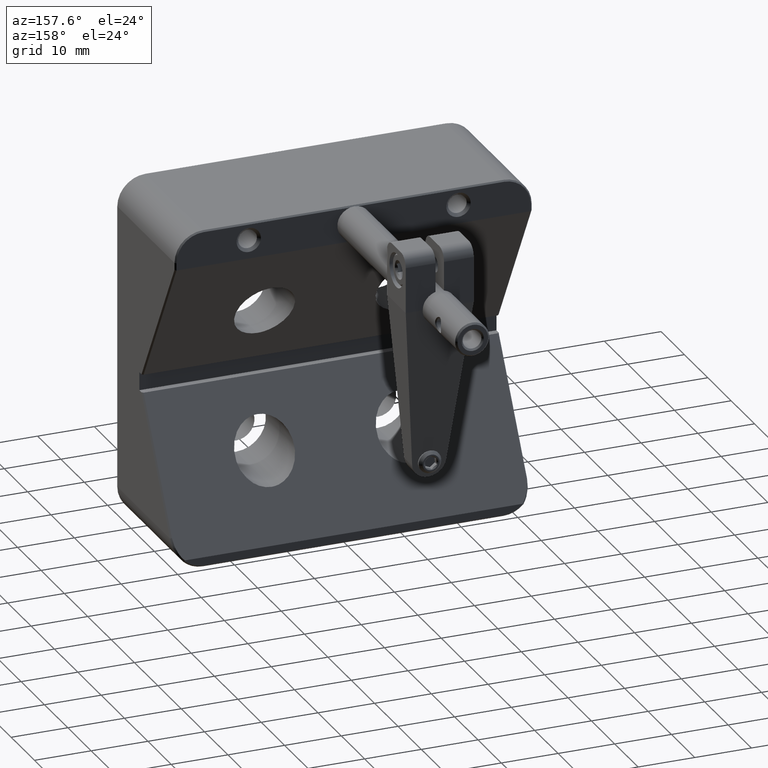
[diagram: clean part render]
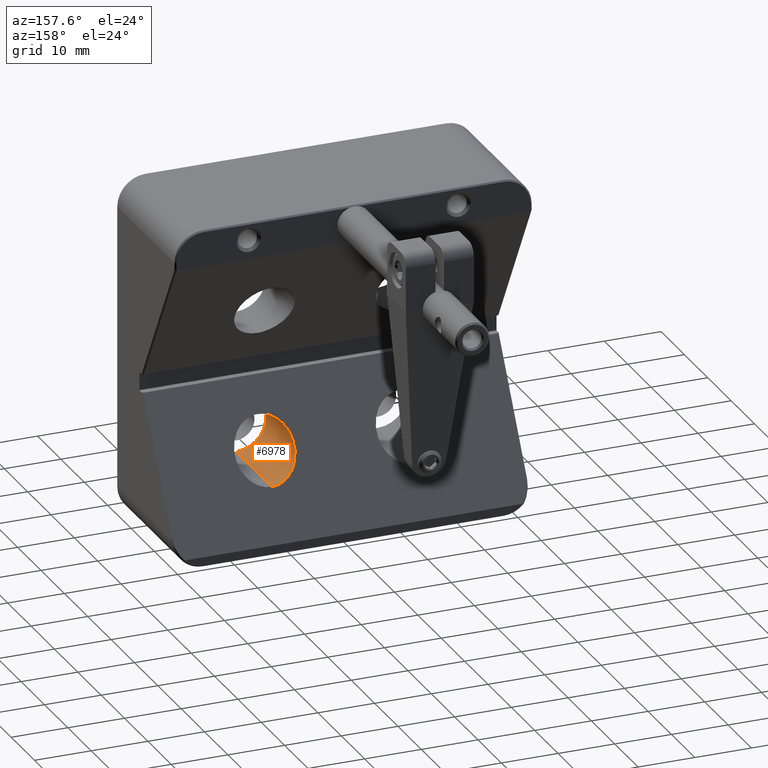
[diagram: same view with one face highlighted and labeled with its STEP entity id]
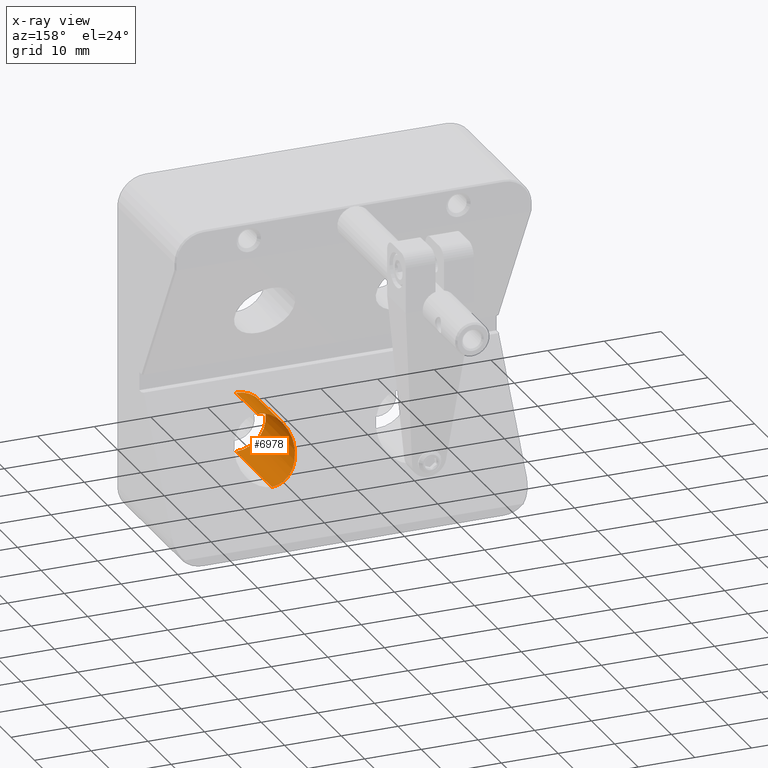
[diagram: x-ray of the same camera — body ghosted, the highlighted face saturated]
A machine part, auxiliary view. The second image highlights one B-rep face of the part: STEP entity #6978.
The next image is the same camera in x-ray: the body ghosted, the highlighted face saturated — about 0% of this face is hidden behind the body in this view.
In plain terms, the highlighted cylindrical surface (edge-blend (fillet) strip) has radius 5.25 mm, axis along (-0, 1, -0).
Its self-contained STEP definition (entity closure, byte-faithful):
#191 = CARTESIAN_POINT ( 'NONE',  ( 12.50000000000000711, -7.500000000000000000, -9.550000000000013145 ) ) ;
#237 = DIRECTION ( 'NONE',  ( -0.0000000000000000000, 1.000000000000000000, -0.0000000000000000000 ) ) ;
#644 = DIRECTION ( 'NONE',  ( 0.0000000000000000000, 0.0000000000000000000, 1.000000000000000000 ) ) ;
#797 = ORIENTED_EDGE ( 'NONE', *, *, #4810, .F. ) ;
#879 = FACE_OUTER_BOUND ( 'NONE', #5788, .T. ) ;
#1008 = CARTESIAN_POINT ( 'NONE',  ( 12.50000000000000711, 12.50000000000000000, -14.80000000000000782 ) ) ;
#1516 = VECTOR ( 'NONE', #7338, 1000.000000000000000 ) ;
#1958 = VERTEX_POINT ( 'NONE', #191 ) ;
#2298 = CARTESIAN_POINT ( 'NONE',  ( 12.50000000000000711, 7.736860279185616029, -20.05000000000000426 ) ) ;
#2690 = VERTEX_POINT ( 'NONE', #2298 ) ;
#3585 = CYLINDRICAL_SURFACE ( 'NONE', #8510, 5.249999999999997335 ) ;
#3757 = CARTESIAN_POINT ( 'NONE',  ( 12.50000000000000711, 1.674682452694583379, -9.550000000000009592 ) ) ;
#3803 = CARTESIAN_POINT ( 'NONE',  ( 12.50000000000000711, 7.736860279185616029, -20.05000000000000426 ) ) ;
#3844 = LINE ( 'NONE', #6875, #5075 ) ;
#3989 = EDGE_CURVE ( 'NONE', #8144, #2690, #7679, .T. ) ;
#4022 = CIRCLE ( 'NONE', #9500, 5.249999999999994671 ) ;
#4186 = EDGE_CURVE ( 'NONE', #4449, #1958, #4022, .T. ) ;
#4424 = ORIENTED_EDGE ( 'NONE', *, *, #4186, .F. ) ;
#4449 = VERTEX_POINT ( 'NONE', #8668 ) ;
#4462 = CARTESIAN_POINT ( 'NONE',  ( 2.000000000000017319, 7.736860279185615141, -20.05000000000000071 ) ) ;
#4810 = EDGE_CURVE ( 'NONE', #1958, #8144, #5367, .T. ) ;
#4982 = ORIENTED_EDGE ( 'NONE', *, *, #9139, .T. ) ;
#5075 = VECTOR ( 'NONE', #237, 1000.000000000000000 ) ;
#5103 = ORIENTED_EDGE ( 'NONE', *, *, #3989, .F. ) ;
#5186 = CARTESIAN_POINT ( 'NONE',  ( 12.50000000000000711, 1.674682452694583379, -9.550000000000009592 ) ) ;
#5367 = LINE ( 'NONE', #6539, #1516 ) ;
#5532 = DIRECTION ( 'NONE',  ( 0.0000000000000000000, 0.0000000000000000000, 1.000000000000000000 ) ) ;
#5788 = EDGE_LOOP ( 'NONE', ( #4424, #4982, #5103, #797 ) ) ;
#5827 = DIRECTION ( 'NONE',  ( -0.0000000000000000000, 1.000000000000000000, -0.0000000000000000000 ) ) ;
#6226 = DIRECTION ( 'NONE',  ( -0.0000000000000000000, 1.000000000000000000, -0.0000000000000000000 ) ) ;
#6539 = CARTESIAN_POINT ( 'NONE',  ( 12.50000000000000711, 12.50000000000000000, -9.550000000000009592 ) ) ;
#6676 = CARTESIAN_POINT ( 'NONE',  ( 2.000000000000019096, 1.674682452694586710, -9.550000000000007816 ) ) ;
#6692 = CARTESIAN_POINT ( 'NONE',  ( 12.50000000000000711, -7.500000000000000000, -14.80000000000000782 ) ) ;
#6875 = CARTESIAN_POINT ( 'NONE',  ( 12.50000000000000711, 12.50000000000000000, -20.05000000000000426 ) ) ;
#6978 = ADVANCED_FACE ( 'NONE', ( #879 ), #3585, .F. ) ;
#7338 = DIRECTION ( 'NONE',  ( -0.0000000000000000000, 1.000000000000000000, -0.0000000000000000000 ) ) ;
#7679 =( BOUNDED_CURVE ( )  B_SPLINE_CURVE ( 3, ( #5186, #6676, #4462, #3803 ),
 .UNSPECIFIED., .F., .F. ) 
 B_SPLINE_CURVE_WITH_KNOTS ( ( 4, 4 ),
 ( 3.141592653589793560, 6.283185307179586232 ),
 .UNSPECIFIED. ) 
 CURVE ( )  GEOMETRIC_REPRESENTATION_ITEM ( )  RATIONAL_B_SPLINE_CURVE ( ( 1.000000000000000000, 0.3333333333333335369, 0.3333333333333335369, 1.000000000000000000 ) ) 
 REPRESENTATION_ITEM ( '' )  );
#8144 = VERTEX_POINT ( 'NONE', #3757 ) ;
#8510 = AXIS2_PLACEMENT_3D ( 'NONE', #1008, #6226, #5532 ) ;
#8668 = CARTESIAN_POINT ( 'NONE',  ( 12.50000000000000711, -7.500000000000000000, -20.05000000000000071 ) ) ;
#9139 = EDGE_CURVE ( 'NONE', #4449, #2690, #3844, .T. ) ;
#9500 = AXIS2_PLACEMENT_3D ( 'NONE', #6692, #5827, #644 ) ;